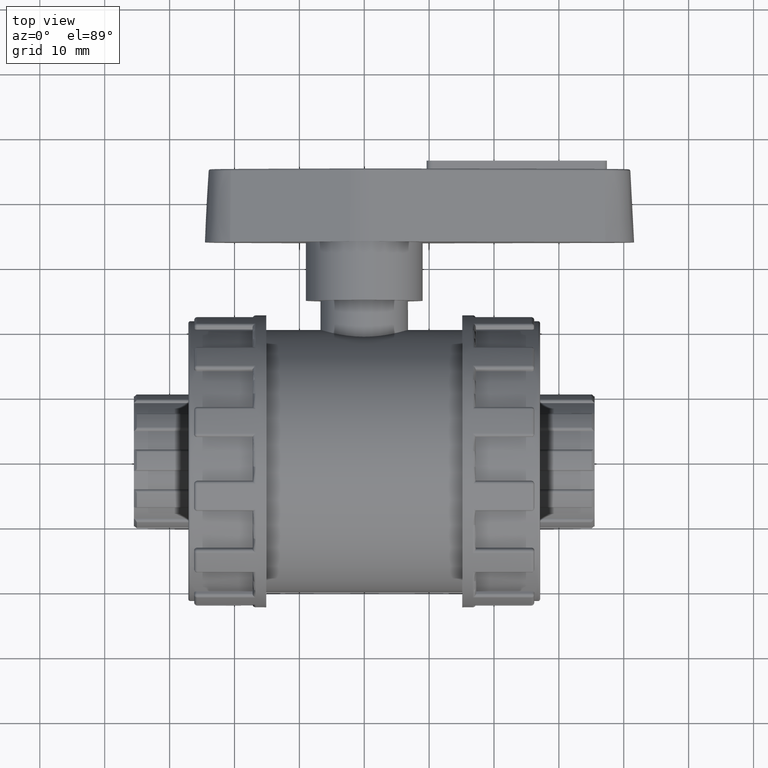
[diagram: clean part render]
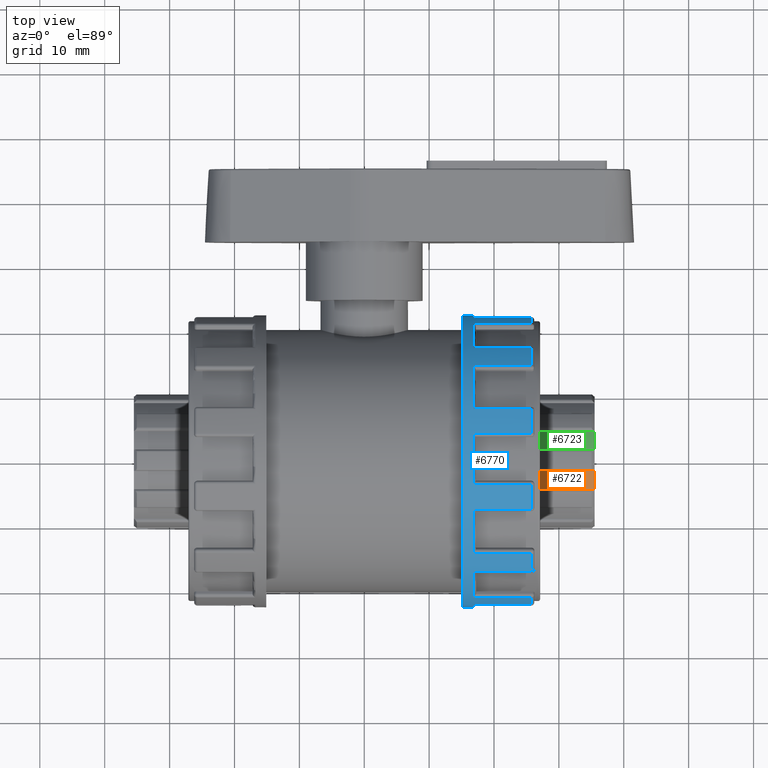
[diagram: same view with three faces highlighted in distinct colors, each labeled with its STEP entity id]
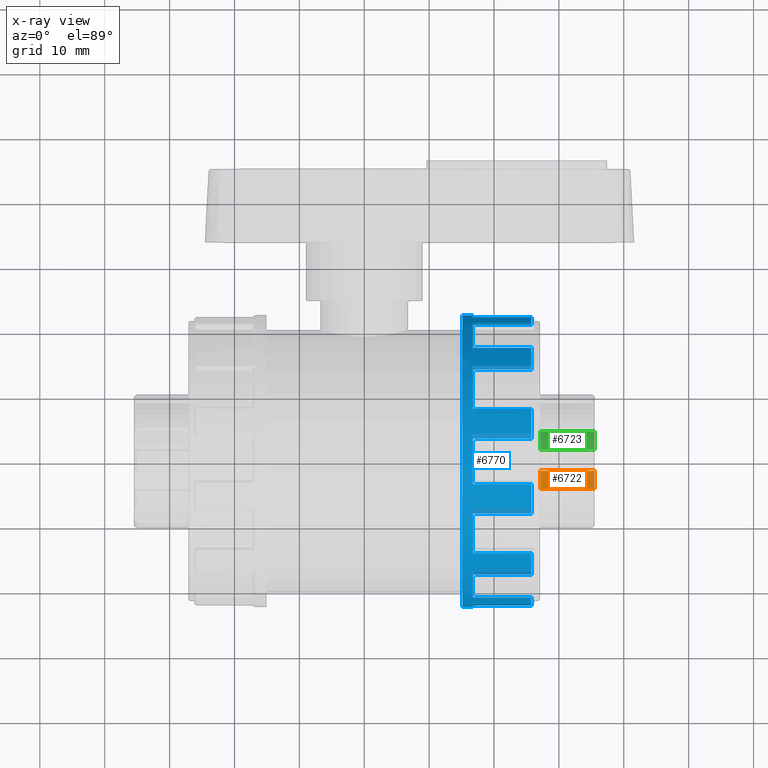
[diagram: x-ray of the same camera — body ghosted, the three highlighted faces saturated]
A machine part, top view with three faces highlighted in distinct colors.
The next image is the same camera in x-ray (body ghosted, the three faces saturated) — at least one of them is partly hidden behind the body in this view.
Their STEP definitions:

[orange] entity #6722 — the highlighted cylindrical surface (partial cylindrical patch) has radius 10.0165 mm, axis along (-1, 0, 0).
#525=FACE_OUTER_BOUND('',#963,.T.);
#963=EDGE_LOOP('',(#4750,#4751,#4752,#4753));
#1397=LINE('',#11054,#1793);
#1399=LINE('',#11074,#1795);
#1793=VECTOR('',#8415,8.4);
#1795=VECTOR('',#8421,8.4);
#2248=CIRCLE('',#7301,10.0165);
#2249=CIRCLE('',#7302,10.0165);
#2771=VERTEX_POINT('',#11036);
#2774=VERTEX_POINT('',#11052);
#2775=VERTEX_POINT('',#11056);
#2778=VERTEX_POINT('',#11061);
#3470=EDGE_CURVE('',#2771,#2774,#1397,.T.);
#3474=EDGE_CURVE('',#2778,#2775,#1399,.T.);
#3552=EDGE_CURVE('',#2778,#2771,#2248,.T.);
#3553=EDGE_CURVE('',#2774,#2775,#2249,.T.);
#4750=ORIENTED_EDGE('',*,*,#3552,.T.);
#4751=ORIENTED_EDGE('',*,*,#3470,.T.);
#4752=ORIENTED_EDGE('',*,*,#3553,.T.);
#4753=ORIENTED_EDGE('',*,*,#3474,.F.);
#6502=CYLINDRICAL_SURFACE('',#7300,10.0165);
#6722=ADVANCED_FACE('',(#525),#6502,.T.);
#7300=AXIS2_PLACEMENT_3D('',#11305,#8605,#8606);
#7301=AXIS2_PLACEMENT_3D('',#11306,#8607,#8608);
#7302=AXIS2_PLACEMENT_3D('',#11307,#8609,#8610);
#8415=DIRECTION('',(-1.,0.,0.));
#8421=DIRECTION('',(-1.,0.,0.));
#8605=DIRECTION('center_axis',(-1.,0.,0.));
#8606=DIRECTION('ref_axis',(0.,-0.951056516295154,-0.309016994374947));
#8607=DIRECTION('center_axis',(-1.,0.,0.));
#8608=DIRECTION('ref_axis',(0.,-1.,0.));
#8609=DIRECTION('center_axis',(1.,0.,0.));
#8610=DIRECTION('ref_axis',(0.,-0.951056516295154,-0.309016994374947));
#11036=CARTESIAN_POINT('',(35.5,-1.63876891019492,9.88153372250373));
#11052=CARTESIAN_POINT('',(27.1,-1.63876891019492,9.88153372250373));
#11054=CARTESIAN_POINT('',(35.5,-1.63876891019492,9.88153372250373));
#11056=CARTESIAN_POINT('',(27.1,-4.48242789391743,8.95757290932264));
#11061=CARTESIAN_POINT('',(35.5,-4.48242789391743,8.95757290932264));
#11074=CARTESIAN_POINT('',(35.5,-4.48242789391743,8.95757290932264));
#11305=CARTESIAN_POINT('Origin',(35.5,0.,0.));
#11306=CARTESIAN_POINT('Origin',(35.5,0.,0.));
#11307=CARTESIAN_POINT('Origin',(27.1,0.,0.));

[blue] entity #6770 — the highlighted cylindrical surface (bore or boss wall) has radius 22.5 mm, axis along (1, 0, 0).
#212=FACE_BOUND('',#1020,.T.);
#573=FACE_OUTER_BOUND('',#1019,.T.);
#1019=EDGE_LOOP('',(#5011));
#1020=EDGE_LOOP('',(#5012,#5013,#5014,#5015,#5016,#5017,#5018,#5019,#5020,
#5021,#5022,#5023,#5024,#5025,#5026,#5027,#5028,#5029,#5030,#5031,#5032,
#5033,#5034,#5035,#5036,#5037,#5038,#5039,#5040,#5041,#5042,#5043,#5044,
#5045,#5046,#5047,#5048,#5049,#5050,#5051,#5052,#5053,#5054,#5055,#5056,
#5057,#5058,#5059));
#1457=LINE('',#11664,#1853);
#1458=LINE('',#11686,#1854);
#1463=LINE('',#11746,#1859);
#1464=LINE('',#11750,#1860);
#1465=LINE('',#11754,#1861);
#1466=LINE('',#11758,#1862);
#1467=LINE('',#11762,#1863);
#1468=LINE('',#11766,#1864);
#1469=LINE('',#11770,#1865);
#1470=LINE('',#11774,#1866);
#1471=LINE('',#11778,#1867);
#1472=LINE('',#11782,#1868);
#1473=LINE('',#11786,#1869);
#1474=LINE('',#11790,#1870);
#1475=LINE('',#11794,#1871);
#1476=LINE('',#11798,#1872);
#1477=LINE('',#11802,#1873);
#1478=LINE('',#11806,#1874);
#1479=LINE('',#11810,#1875);
#1480=LINE('',#11814,#1876);
#1481=LINE('',#11818,#1877);
#1482=LINE('',#11822,#1878);
#1483=LINE('',#11826,#1879);
#1484=LINE('',#11829,#1880);
#1853=VECTOR('',#8873,9.);
#1854=VECTOR('',#8878,9.);
#1859=VECTOR('',#8923,9.);
#1860=VECTOR('',#8926,9.);
#1861=VECTOR('',#8929,9.);
#1862=VECTOR('',#8932,9.);
#1863=VECTOR('',#8935,9.);
#1864=VECTOR('',#8938,9.);
#1865=VECTOR('',#8941,9.);
#1866=VECTOR('',#8944,9.);
#1867=VECTOR('',#8947,9.);
#1868=VECTOR('',#8950,9.);
#1869=VECTOR('',#8953,9.);
#1870=VECTOR('',#8956,9.);
#1871=VECTOR('',#8959,9.);
#1872=VECTOR('',#8962,9.);
#1873=VECTOR('',#8965,9.);
#1874=VECTOR('',#8968,9.);
#1875=VECTOR('',#8971,9.);
#1876=VECTOR('',#8974,9.);
#1877=VECTOR('',#8977,9.);
#1878=VECTOR('',#8980,9.);
#1879=VECTOR('',#8983,9.);
#1880=VECTOR('',#8986,9.);
#2324=CIRCLE('',#7419,22.5);
#2331=CIRCLE('',#7431,22.5);
#2333=CIRCLE('',#7434,22.5);
#2334=CIRCLE('',#7435,22.5);
#2335=CIRCLE('',#7436,22.5);
#2336=CIRCLE('',#7437,22.5);
#2337=CIRCLE('',#7438,22.5);
#2338=CIRCLE('',#7439,22.5);
#2339=CIRCLE('',#7440,22.5);
#2340=CIRCLE('',#7441,22.5);
#2341=CIRCLE('',#7442,22.5);
#2342=CIRCLE('',#7443,22.5);
#2343=CIRCLE('',#7444,22.5);
#2344=CIRCLE('',#7445,22.5);
#2345=CIRCLE('',#7446,22.5);
#2346=CIRCLE('',#7447,22.5);
#2347=CIRCLE('',#7448,22.5);
#2348=CIRCLE('',#7449,22.5);
#2349=CIRCLE('',#7450,22.5);
#2350=CIRCLE('',#7451,22.5);
#2351=CIRCLE('',#7452,22.5);
#2352=CIRCLE('',#7453,22.5);
#2353=CIRCLE('',#7454,22.5);
#2354=CIRCLE('',#7455,22.5);
#2355=CIRCLE('',#7456,22.5);
#2898=VERTEX_POINT('',#11661);
#2899=VERTEX_POINT('',#11663);
#2901=VERTEX_POINT('',#11684);
#2902=VERTEX_POINT('',#11685);
#2910=VERTEX_POINT('',#11737);
#2911=VERTEX_POINT('',#11741);
#2912=VERTEX_POINT('',#11743);
#2913=VERTEX_POINT('',#11745);
#2914=VERTEX_POINT('',#11747);
#2915=VERTEX_POINT('',#11749);
#2916=VERTEX_POINT('',#11751);
#2917=VERTEX_POINT('',#11753);
#2918=VERTEX_POINT('',#11755);
#2919=VERTEX_POINT('',#11757);
#2920=VERTEX_POINT('',#11759);
#2921=VERTEX_POINT('',#11761);
#2922=VERTEX_POINT('',#11763);
#2923=VERTEX_POINT('',#11765);
#2924=VERTEX_POINT('',#11767);
#2925=VERTEX_POINT('',#11769);
#2926=VERTEX_POINT('',#11771);
#2927=VERTEX_POINT('',#11773);
#2928=VERTEX_POINT('',#11775);
#2929=VERTEX_POINT('',#11777);
#2930=VERTEX_POINT('',#11779);
#2931=VERTEX_POINT('',#11781);
#2932=VERTEX_POINT('',#11783);
#2933=VERTEX_POINT('',#11785);
#2934=VERTEX_POINT('',#11787);
#2935=VERTEX_POINT('',#11789);
#2936=VERTEX_POINT('',#11791);
#2937=VERTEX_POINT('',#11793);
#2938=VERTEX_POINT('',#11795);
#2939=VERTEX_POINT('',#11797);
#2940=VERTEX_POINT('',#11799);
#2941=VERTEX_POINT('',#11801);
#2942=VERTEX_POINT('',#11803);
#2943=VERTEX_POINT('',#11805);
#2944=VERTEX_POINT('',#11807);
#2945=VERTEX_POINT('',#11809);
#2946=VERTEX_POINT('',#11811);
#2947=VERTEX_POINT('',#11813);
#2948=VERTEX_POINT('',#11815);
#2949=VERTEX_POINT('',#11817);
#2950=VERTEX_POINT('',#11819);
#2951=VERTEX_POINT('',#11821);
#2952=VERTEX_POINT('',#11823);
#2953=VERTEX_POINT('',#11825);
#2954=VERTEX_POINT('',#11827);
#3673=EDGE_CURVE('',#2898,#2899,#1457,.T.);
#3676=EDGE_CURVE('',#2901,#2902,#1458,.T.);
#3681=EDGE_CURVE('',#2899,#2901,#2324,.T.);
#3692=EDGE_CURVE('',#2902,#2910,#2331,.T.);
#3694=EDGE_CURVE('',#2911,#2911,#2333,.T.);
#3695=EDGE_CURVE('',#2912,#2898,#2334,.T.);
#3696=EDGE_CURVE('',#2913,#2912,#1463,.T.);
#3697=EDGE_CURVE('',#2914,#2913,#2335,.T.);
#3698=EDGE_CURVE('',#2915,#2914,#1464,.T.);
#3699=EDGE_CURVE('',#2916,#2915,#2336,.T.);
#3700=EDGE_CURVE('',#2917,#2916,#1465,.T.);
#3701=EDGE_CURVE('',#2918,#2917,#2337,.T.);
#3702=EDGE_CURVE('',#2919,#2918,#1466,.T.);
#3703=EDGE_CURVE('',#2920,#2919,#2338,.T.);
#3704=EDGE_CURVE('',#2921,#2920,#1467,.T.);
#3705=EDGE_CURVE('',#2922,#2921,#2339,.T.);
#3706=EDGE_CURVE('',#2923,#2922,#1468,.T.);
#3707=EDGE_CURVE('',#2924,#2923,#2340,.T.);
#3708=EDGE_CURVE('',#2925,#2924,#1469,.T.);
#3709=EDGE_CURVE('',#2926,#2925,#2341,.T.);
#3710=EDGE_CURVE('',#2927,#2926,#1470,.T.);
#3711=EDGE_CURVE('',#2928,#2927,#2342,.T.);
#3712=EDGE_CURVE('',#2929,#2928,#1471,.T.);
#3713=EDGE_CURVE('',#2930,#2929,#2343,.T.);
#3714=EDGE_CURVE('',#2931,#2930,#1472,.T.);
#3715=EDGE_CURVE('',#2932,#2931,#2344,.T.);
#3716=EDGE_CURVE('',#2933,#2932,#1473,.T.);
#3717=EDGE_CURVE('',#2934,#2933,#2345,.T.);
#3718=EDGE_CURVE('',#2935,#2934,#1474,.T.);
#3719=EDGE_CURVE('',#2936,#2935,#2346,.T.);
#3720=EDGE_CURVE('',#2937,#2936,#1475,.T.);
#3721=EDGE_CURVE('',#2938,#2937,#2347,.T.);
#3722=EDGE_CURVE('',#2939,#2938,#1476,.T.);
#3723=EDGE_CURVE('',#2940,#2939,#2348,.T.);
#3724=EDGE_CURVE('',#2941,#2940,#1477,.T.);
#3725=EDGE_CURVE('',#2942,#2941,#2349,.T.);
#3726=EDGE_CURVE('',#2943,#2942,#1478,.T.);
#3727=EDGE_CURVE('',#2944,#2943,#2350,.T.);
#3728=EDGE_CURVE('',#2945,#2944,#1479,.T.);
#3729=EDGE_CURVE('',#2946,#2945,#2351,.T.);
#3730=EDGE_CURVE('',#2947,#2946,#1480,.T.);
#3731=EDGE_CURVE('',#2948,#2947,#2352,.T.);
#3732=EDGE_CURVE('',#2949,#2948,#1481,.T.);
#3733=EDGE_CURVE('',#2950,#2949,#2353,.T.);
#3734=EDGE_CURVE('',#2951,#2950,#1482,.T.);
#3735=EDGE_CURVE('',#2952,#2951,#2354,.T.);
#3736=EDGE_CURVE('',#2953,#2952,#1483,.T.);
#3737=EDGE_CURVE('',#2954,#2953,#2355,.T.);
#3738=EDGE_CURVE('',#2910,#2954,#1484,.T.);
#5011=ORIENTED_EDGE('',*,*,#3694,.T.);
#5012=ORIENTED_EDGE('',*,*,#3676,.F.);
#5013=ORIENTED_EDGE('',*,*,#3681,.F.);
#5014=ORIENTED_EDGE('',*,*,#3673,.F.);
#5015=ORIENTED_EDGE('',*,*,#3695,.F.);
#5016=ORIENTED_EDGE('',*,*,#3696,.F.);
#5017=ORIENTED_EDGE('',*,*,#3697,.F.);
#5018=ORIENTED_EDGE('',*,*,#3698,.F.);
#5019=ORIENTED_EDGE('',*,*,#3699,.F.);
#5020=ORIENTED_EDGE('',*,*,#3700,.F.);
#5021=ORIENTED_EDGE('',*,*,#3701,.F.);
#5022=ORIENTED_EDGE('',*,*,#3702,.F.);
#5023=ORIENTED_EDGE('',*,*,#3703,.F.);
#5024=ORIENTED_EDGE('',*,*,#3704,.F.);
#5025=ORIENTED_EDGE('',*,*,#3705,.F.);
#5026=ORIENTED_EDGE('',*,*,#3706,.F.);
#5027=ORIENTED_EDGE('',*,*,#3707,.F.);
#5028=ORIENTED_EDGE('',*,*,#3708,.F.);
#5029=ORIENTED_EDGE('',*,*,#3709,.F.);
#5030=ORIENTED_EDGE('',*,*,#3710,.F.);
#5031=ORIENTED_EDGE('',*,*,#3711,.F.);
#5032=ORIENTED_EDGE('',*,*,#3712,.F.);
#5033=ORIENTED_EDGE('',*,*,#3713,.F.);
#5034=ORIENTED_EDGE('',*,*,#3714,.F.);
#5035=ORIENTED_EDGE('',*,*,#3715,.F.);
#5036=ORIENTED_EDGE('',*,*,#3716,.F.);
#5037=ORIENTED_EDGE('',*,*,#3717,.F.);
#5038=ORIENTED_EDGE('',*,*,#3718,.F.);
#5039=ORIENTED_EDGE('',*,*,#3719,.F.);
#5040=ORIENTED_EDGE('',*,*,#3720,.F.);
#5041=ORIENTED_EDGE('',*,*,#3721,.F.);
#5042=ORIENTED_EDGE('',*,*,#3722,.F.);
#5043=ORIENTED_EDGE('',*,*,#3723,.F.);
#5044=ORIENTED_EDGE('',*,*,#3724,.F.);
#5045=ORIENTED_EDGE('',*,*,#3725,.F.);
#5046=ORIENTED_EDGE('',*,*,#3726,.F.);
#5047=ORIENTED_EDGE('',*,*,#3727,.F.);
#5048=ORIENTED_EDGE('',*,*,#3728,.F.);
#5049=ORIENTED_EDGE('',*,*,#3729,.F.);
#5050=ORIENTED_EDGE('',*,*,#3730,.F.);
#5051=ORIENTED_EDGE('',*,*,#3731,.F.);
#5052=ORIENTED_EDGE('',*,*,#3732,.F.);
#5053=ORIENTED_EDGE('',*,*,#3733,.F.);
#5054=ORIENTED_EDGE('',*,*,#3734,.F.);
#5055=ORIENTED_EDGE('',*,*,#3735,.F.);
#5056=ORIENTED_EDGE('',*,*,#3736,.F.);
#5057=ORIENTED_EDGE('',*,*,#3737,.F.);
#5058=ORIENTED_EDGE('',*,*,#3738,.F.);
#5059=ORIENTED_EDGE('',*,*,#3692,.F.);
#6524=CYLINDRICAL_SURFACE('',#7433,22.5);
#6770=ADVANCED_FACE('',(#573,#212),#6524,.T.);
#7419=AXIS2_PLACEMENT_3D('',#11707,#8886,#8887);
#7431=AXIS2_PLACEMENT_3D('',#11738,#8913,#8914);
#7433=AXIS2_PLACEMENT_3D('',#11740,#8917,#8918);
#7434=AXIS2_PLACEMENT_3D('',#11742,#8919,#8920);
#7435=AXIS2_PLACEMENT_3D('',#11744,#8921,#8922);
#7436=AXIS2_PLACEMENT_3D('',#11748,#8924,#8925);
#7437=AXIS2_PLACEMENT_3D('',#11752,#8927,#8928);
#7438=AXIS2_PLACEMENT_3D('',#11756,#8930,#8931);
#7439=AXIS2_PLACEMENT_3D('',#11760,#8933,#8934);
#7440=AXIS2_PLACEMENT_3D('',#11764,#8936,#8937);
#7441=AXIS2_PLACEMENT_3D('',#11768,#8939,#8940);
#7442=AXIS2_PLACEMENT_3D('',#11772,#8942,#8943);
#7443=AXIS2_PLACEMENT_3D('',#11776,#8945,#8946);
#7444=AXIS2_PLACEMENT_3D('',#11780,#8948,#8949);
#7445=AXIS2_PLACEMENT_3D('',#11784,#8951,#8952);
#7446=AXIS2_PLACEMENT_3D('',#11788,#8954,#8955);
#7447=AXIS2_PLACEMENT_3D('',#11792,#8957,#8958);
#7448=AXIS2_PLACEMENT_3D('',#11796,#8960,#8961);
#7449=AXIS2_PLACEMENT_3D('',#11800,#8963,#8964);
#7450=AXIS2_PLACEMENT_3D('',#11804,#8966,#8967);
#7451=AXIS2_PLACEMENT_3D('',#11808,#8969,#8970);
#7452=AXIS2_PLACEMENT_3D('',#11812,#8972,#8973);
#7453=AXIS2_PLACEMENT_3D('',#11816,#8975,#8976);
#7454=AXIS2_PLACEMENT_3D('',#11820,#8978,#8979);
#7455=AXIS2_PLACEMENT_3D('',#11824,#8981,#8982);
#7456=AXIS2_PLACEMENT_3D('',#11828,#8984,#8985);
#8873=DIRECTION('',(-1.,0.,0.));
#8878=DIRECTION('',(1.,0.,0.));
#8886=DIRECTION('center_axis',(1.,0.,0.));
#8887=DIRECTION('ref_axis',(0.,-0.866025403784438,0.5));
#8913=DIRECTION('center_axis',(1.,0.,0.));
#8914=DIRECTION('ref_axis',(0.,-1.,1.83697019872103E-16));
#8917=DIRECTION('center_axis',(1.,0.,0.));
#8918=DIRECTION('ref_axis',(0.,1.,0.));
#8919=DIRECTION('center_axis',(1.,0.,0.));
#8920=DIRECTION('ref_axis',(0.,0.,-1.));
#8921=DIRECTION('center_axis',(1.,0.,0.));
#8922=DIRECTION('ref_axis',(0.,-1.,1.83697019872103E-16));
#8923=DIRECTION('',(1.,0.,0.));
#8924=DIRECTION('center_axis',(1.,0.,0.));
#8925=DIRECTION('ref_axis',(0.,-0.499999999999999,0.866025403784439));
#8926=DIRECTION('',(-1.,0.,0.));
#8927=DIRECTION('center_axis',(1.,0.,0.));
#8928=DIRECTION('ref_axis',(0.,-1.,1.83697019872103E-16));
#8929=DIRECTION('',(1.,0.,0.));
#8930=DIRECTION('center_axis',(1.,0.,0.));
#8931=DIRECTION('ref_axis',(0.,2.83276944882399E-16,1.));
#8932=DIRECTION('',(-1.,0.,0.));
#8933=DIRECTION('center_axis',(1.,0.,0.));
#8934=DIRECTION('ref_axis',(0.,-1.,1.83697019872103E-16));
#8935=DIRECTION('',(1.,0.,0.));
#8936=DIRECTION('center_axis',(1.,0.,0.));
#8937=DIRECTION('ref_axis',(0.,0.5,0.866025403784438));
#8938=DIRECTION('',(-1.,0.,0.));
#8939=DIRECTION('center_axis',(1.,0.,0.));
#8940=DIRECTION('ref_axis',(0.,-1.,1.83697019872103E-16));
#8941=DIRECTION('',(1.,0.,0.));
#8942=DIRECTION('center_axis',(1.,0.,0.));
#8943=DIRECTION('ref_axis',(0.,0.866025403784439,0.5));
#8944=DIRECTION('',(-1.,0.,0.));
#8945=DIRECTION('center_axis',(1.,0.,0.));
#8946=DIRECTION('ref_axis',(0.,-1.,1.83697019872103E-16));
#8947=DIRECTION('',(1.,0.,0.));
#8948=DIRECTION('center_axis',(1.,0.,0.));
#8949=DIRECTION('ref_axis',(0.,1.,-1.2490009027033E-16));
#8950=DIRECTION('',(-1.,0.,0.));
#8951=DIRECTION('center_axis',(1.,0.,0.));
#8952=DIRECTION('ref_axis',(0.,-1.,1.83697019872103E-16));
#8953=DIRECTION('',(1.,0.,0.));
#8954=DIRECTION('center_axis',(1.,0.,0.));
#8955=DIRECTION('ref_axis',(0.,0.866025403784438,-0.5));
#8956=DIRECTION('',(-1.,0.,0.));
#8957=DIRECTION('center_axis',(1.,0.,0.));
#8958=DIRECTION('ref_axis',(0.,-1.,1.83697019872103E-16));
#8959=DIRECTION('',(1.,0.,0.));
#8960=DIRECTION('center_axis',(1.,0.,0.));
#8961=DIRECTION('ref_axis',(0.,0.5,-0.866025403784439));
#8962=DIRECTION('',(-1.,0.,0.));
#8963=DIRECTION('center_axis',(1.,0.,0.));
#8964=DIRECTION('ref_axis',(0.,-1.,1.83697019872103E-16));
#8965=DIRECTION('',(1.,0.,0.));
#8966=DIRECTION('center_axis',(1.,0.,0.));
#8967=DIRECTION('ref_axis',(0.,-1.60812264967664E-16,-1.));
#8968=DIRECTION('',(-1.,0.,0.));
#8969=DIRECTION('center_axis',(1.,0.,0.));
#8970=DIRECTION('ref_axis',(0.,-1.,1.83697019872103E-16));
#8971=DIRECTION('',(1.,0.,0.));
#8972=DIRECTION('center_axis',(1.,0.,0.));
#8973=DIRECTION('ref_axis',(0.,-0.5,-0.866025403784438));
#8974=DIRECTION('',(-1.,0.,0.));
#8975=DIRECTION('center_axis',(1.,0.,0.));
#8976=DIRECTION('ref_axis',(0.,-1.,1.83697019872103E-16));
#8977=DIRECTION('',(1.,0.,0.));
#8978=DIRECTION('center_axis',(1.,0.,0.));
#8979=DIRECTION('ref_axis',(0.,-0.866025403784439,-0.5));
#8980=DIRECTION('',(-1.,0.,0.));
#8981=DIRECTION('center_axis',(1.,0.,0.));
#8982=DIRECTION('ref_axis',(0.,-1.,1.83697019872103E-16));
#8983=DIRECTION('',(1.,0.,0.));
#8984=DIRECTION('center_axis',(1.,0.,0.));
#8985=DIRECTION('ref_axis',(0.,-1.,-1.22464679914735E-16));
#8986=DIRECTION('',(-1.,0.,0.));
#11661=CARTESIAN_POINT('',(25.7515,-17.2397972252352,14.4581946187196));
#11663=CARTESIAN_POINT('',(16.7515,-17.2397972252352,14.4581946187196));
#11664=CARTESIAN_POINT('',(20.65,-17.2397972252352,14.4581946187196));
#11684=CARTESIAN_POINT('',(16.7515,-21.1410624452883,7.70100504378636));
#11685=CARTESIAN_POINT('',(25.7515,-21.1410624452882,7.70100504378636));
#11686=CARTESIAN_POINT('',(20.65,-21.1410624452883,7.70100504378636));
#11707=CARTESIAN_POINT('Origin',(16.7515,0.,0.));
#11737=CARTESIAN_POINT('',(25.7515,-22.159199662506,3.90126522005306));
#11738=CARTESIAN_POINT('Origin',(25.7515,0.,0.));
#11740=CARTESIAN_POINT('Origin',(20.65,0.,0.));
#11741=CARTESIAN_POINT('',(15.1,22.5,0.));
#11742=CARTESIAN_POINT('Origin',(15.1,0.,0.));
#11743=CARTESIAN_POINT('',(25.7515,-14.4581946187196,17.2397972252352));
#11744=CARTESIAN_POINT('Origin',(25.7515,0.,0.));
#11745=CARTESIAN_POINT('',(16.7515,-14.4581946187196,17.2397972252352));
#11746=CARTESIAN_POINT('',(20.65,-14.4581946187196,17.2397972252352));
#11747=CARTESIAN_POINT('',(16.7515,-7.70100504378633,21.1410624452883));
#11748=CARTESIAN_POINT('Origin',(16.7515,0.,0.));
#11749=CARTESIAN_POINT('',(25.7515,-7.70100504378633,21.1410624452883));
#11750=CARTESIAN_POINT('',(20.65,-7.70100504378633,21.1410624452883));
#11751=CARTESIAN_POINT('',(25.7515,-3.90126522005305,22.159199662506));
#11752=CARTESIAN_POINT('Origin',(25.7515,0.,0.));
#11753=CARTESIAN_POINT('',(16.7515,-3.90126522005305,22.159199662506));
#11754=CARTESIAN_POINT('',(20.65,-3.90126522005305,22.159199662506));
#11755=CARTESIAN_POINT('',(16.7515,3.90126522005306,22.159199662506));
#11756=CARTESIAN_POINT('Origin',(16.7515,0.,0.));
#11757=CARTESIAN_POINT('',(25.7515,3.90126522005306,22.159199662506));
#11758=CARTESIAN_POINT('',(20.65,3.90126522005306,22.159199662506));
#11759=CARTESIAN_POINT('',(25.7515,7.70100504378635,21.1410624452883));
#11760=CARTESIAN_POINT('Origin',(25.7515,0.,0.));
#11761=CARTESIAN_POINT('',(16.7515,7.70100504378635,21.1410624452883));
#11762=CARTESIAN_POINT('',(20.65,7.70100504378635,21.1410624452883));
#11763=CARTESIAN_POINT('',(16.7515,14.4581946187196,17.2397972252352));
#11764=CARTESIAN_POINT('Origin',(16.7515,0.,0.));
#11765=CARTESIAN_POINT('',(25.7515,14.4581946187196,17.2397972252352));
#11766=CARTESIAN_POINT('',(20.65,14.4581946187196,17.2397972252352));
#11767=CARTESIAN_POINT('',(25.7515,17.2397972252352,14.4581946187196));
#11768=CARTESIAN_POINT('Origin',(25.7515,0.,0.));
#11769=CARTESIAN_POINT('',(16.7515,17.2397972252352,14.4581946187196));
#11770=CARTESIAN_POINT('',(20.65,17.2397972252352,14.4581946187196));
#11771=CARTESIAN_POINT('',(16.7515,21.1410624452883,7.70100504378634));
#11772=CARTESIAN_POINT('Origin',(16.7515,0.,0.));
#11773=CARTESIAN_POINT('',(25.7515,21.1410624452883,7.70100504378633));
#11774=CARTESIAN_POINT('',(20.65,21.1410624452883,7.70100504378634));
#11775=CARTESIAN_POINT('',(25.7515,22.159199662506,3.90126522005306));
#11776=CARTESIAN_POINT('Origin',(25.7515,0.,0.));
#11777=CARTESIAN_POINT('',(16.7515,22.159199662506,3.90126522005306));
#11778=CARTESIAN_POINT('',(20.65,22.159199662506,3.90126522005306));
#11779=CARTESIAN_POINT('',(16.7515,22.159199662506,-3.90126522005306));
#11780=CARTESIAN_POINT('Origin',(16.7515,0.,0.));
#11781=CARTESIAN_POINT('',(25.7515,22.159199662506,-3.90126522005306));
#11782=CARTESIAN_POINT('',(20.65,22.159199662506,-3.90126522005306));
#11783=CARTESIAN_POINT('',(25.7515,21.1410624452882,-7.70100504378635));
#11784=CARTESIAN_POINT('Origin',(25.7515,0.,0.));
#11785=CARTESIAN_POINT('',(16.7515,21.1410624452882,-7.70100504378635));
#11786=CARTESIAN_POINT('',(20.65,21.1410624452882,-7.70100504378635));
#11787=CARTESIAN_POINT('',(16.7515,17.2397972252352,-14.4581946187196));
#11788=CARTESIAN_POINT('Origin',(16.7515,0.,0.));
#11789=CARTESIAN_POINT('',(25.7515,17.2397972252352,-14.4581946187196));
#11790=CARTESIAN_POINT('',(20.65,17.2397972252352,-14.4581946187196));
#11791=CARTESIAN_POINT('',(25.7515,14.4581946187196,-17.2397972252352));
#11792=CARTESIAN_POINT('Origin',(25.7515,0.,0.));
#11793=CARTESIAN_POINT('',(16.7515,14.4581946187196,-17.2397972252352));
#11794=CARTESIAN_POINT('',(20.65,14.4581946187196,-17.2397972252352));
#11795=CARTESIAN_POINT('',(16.7515,7.70100504378634,-21.1410624452883));
#11796=CARTESIAN_POINT('Origin',(16.7515,0.,0.));
#11797=CARTESIAN_POINT('',(25.7515,7.70100504378634,-21.1410624452883));
#11798=CARTESIAN_POINT('',(20.65,7.70100504378634,-21.1410624452883));
#11799=CARTESIAN_POINT('',(25.7515,3.90126522005305,-22.159199662506));
#11800=CARTESIAN_POINT('Origin',(25.7515,0.,0.));
#11801=CARTESIAN_POINT('',(16.7515,3.90126522005305,-22.159199662506));
#11802=CARTESIAN_POINT('',(20.65,3.90126522005305,-22.159199662506));
#11803=CARTESIAN_POINT('',(16.7515,-3.90126522005306,-22.159199662506));
#11804=CARTESIAN_POINT('Origin',(16.7515,0.,0.));
#11805=CARTESIAN_POINT('',(25.7515,-3.90126522005306,-22.159199662506));
#11806=CARTESIAN_POINT('',(20.65,-3.90126522005306,-22.159199662506));
#11807=CARTESIAN_POINT('',(25.7515,-7.70100504378634,-21.1410624452883));
#11808=CARTESIAN_POINT('Origin',(25.7515,0.,0.));
#11809=CARTESIAN_POINT('',(16.7515,-7.70100504378634,-21.1410624452883));
#11810=CARTESIAN_POINT('',(20.65,-7.70100504378634,-21.1410624452883));
#11811=CARTESIAN_POINT('',(16.7515,-14.4581946187196,-17.2397972252352));
#11812=CARTESIAN_POINT('Origin',(16.7515,0.,0.));
#11813=CARTESIAN_POINT('',(25.7515,-14.4581946187196,-17.2397972252352));
#11814=CARTESIAN_POINT('',(20.65,-14.4581946187196,-17.2397972252352));
#11815=CARTESIAN_POINT('',(25.7515,-17.2397972252352,-14.4581946187196));
#11816=CARTESIAN_POINT('Origin',(25.7515,0.,0.));
#11817=CARTESIAN_POINT('',(16.7515,-17.2397972252352,-14.4581946187196));
#11818=CARTESIAN_POINT('',(20.65,-17.2397972252352,-14.4581946187196));
#11819=CARTESIAN_POINT('',(16.7515,-21.1410624452883,-7.70100504378634));
#11820=CARTESIAN_POINT('Origin',(16.7515,0.,0.));
#11821=CARTESIAN_POINT('',(25.7515,-21.1410624452883,-7.70100504378633));
#11822=CARTESIAN_POINT('',(20.65,-21.1410624452883,-7.70100504378634));
#11823=CARTESIAN_POINT('',(25.7515,-22.159199662506,-3.90126522005306));
#11824=CARTESIAN_POINT('Origin',(25.7515,0.,0.));
#11825=CARTESIAN_POINT('',(16.7515,-22.159199662506,-3.90126522005306));
#11826=CARTESIAN_POINT('',(20.65,-22.159199662506,-3.90126522005306));
#11827=CARTESIAN_POINT('',(16.7515,-22.159199662506,3.90126522005306));
#11828=CARTESIAN_POINT('Origin',(16.7515,0.,0.));
#11829=CARTESIAN_POINT('',(20.65,-22.159199662506,3.90126522005306));

[green] entity #6723 — the highlighted cylindrical surface (partial cylindrical patch) has radius 10.0165 mm, axis along (-1, 0, 0).
#526=FACE_OUTER_BOUND('',#964,.T.);
#964=EDGE_LOOP('',(#4754,#4755,#4756,#4757));
#1405=LINE('',#11142,#1801);
#1407=LINE('',#11162,#1803);
#1801=VECTOR('',#8455,8.4);
#1803=VECTOR('',#8461,8.4);
#2250=CIRCLE('',#7304,10.0165);
#2251=CIRCLE('',#7305,10.0165);
#2787=VERTEX_POINT('',#11124);
#2790=VERTEX_POINT('',#11140);
#2791=VERTEX_POINT('',#11144);
#2794=VERTEX_POINT('',#11149);
#3491=EDGE_CURVE('',#2787,#2790,#1405,.T.);
#3495=EDGE_CURVE('',#2794,#2791,#1407,.T.);
#3554=EDGE_CURVE('',#2794,#2787,#2250,.T.);
#3555=EDGE_CURVE('',#2790,#2791,#2251,.T.);
#4754=ORIENTED_EDGE('',*,*,#3554,.T.);
#4755=ORIENTED_EDGE('',*,*,#3491,.T.);
#4756=ORIENTED_EDGE('',*,*,#3555,.T.);
#4757=ORIENTED_EDGE('',*,*,#3495,.F.);
#6503=CYLINDRICAL_SURFACE('',#7303,10.0165);
#6723=ADVANCED_FACE('',(#526),#6503,.T.);
#7303=AXIS2_PLACEMENT_3D('',#11308,#8611,#8612);
#7304=AXIS2_PLACEMENT_3D('',#11309,#8613,#8614);
#7305=AXIS2_PLACEMENT_3D('',#11310,#8615,#8616);
#8455=DIRECTION('',(-1.,0.,0.));
#8461=DIRECTION('',(-1.,0.,0.));
#8611=DIRECTION('center_axis',(-1.,0.,0.));
#8612=DIRECTION('ref_axis',(0.,-0.951056516295154,0.309016994374947));
#8613=DIRECTION('center_axis',(-1.,0.,0.));
#8614=DIRECTION('ref_axis',(0.,-1.,0.));
#8615=DIRECTION('center_axis',(1.,0.,0.));
#8616=DIRECTION('ref_axis',(0.,-0.951056516295154,0.309016994374947));
#11124=CARTESIAN_POINT('',(35.5,4.48242789391743,8.95757290932264));
#11140=CARTESIAN_POINT('',(27.1,4.48242789391743,8.95757290932264));
#11142=CARTESIAN_POINT('',(35.5,4.48242789391743,8.95757290932264));
#11144=CARTESIAN_POINT('',(27.1,1.63876891019492,9.88153372250373));
#11149=CARTESIAN_POINT('',(35.5,1.63876891019492,9.88153372250373));
#11162=CARTESIAN_POINT('',(35.5,1.63876891019492,9.88153372250373));
#11308=CARTESIAN_POINT('Origin',(35.5,0.,0.));
#11309=CARTESIAN_POINT('Origin',(35.5,0.,0.));
#11310=CARTESIAN_POINT('Origin',(27.1,0.,0.));